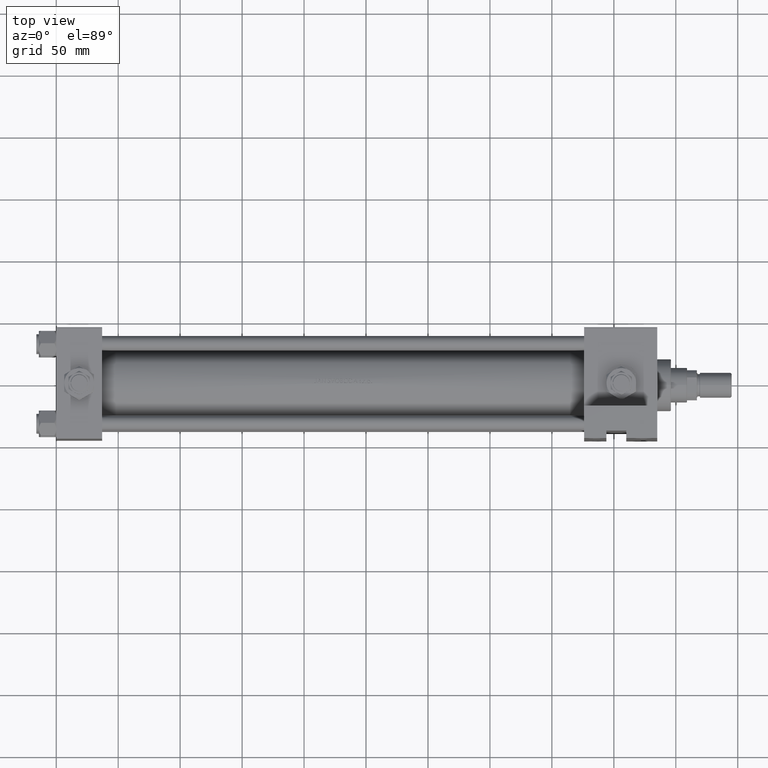
[diagram: clean part render]
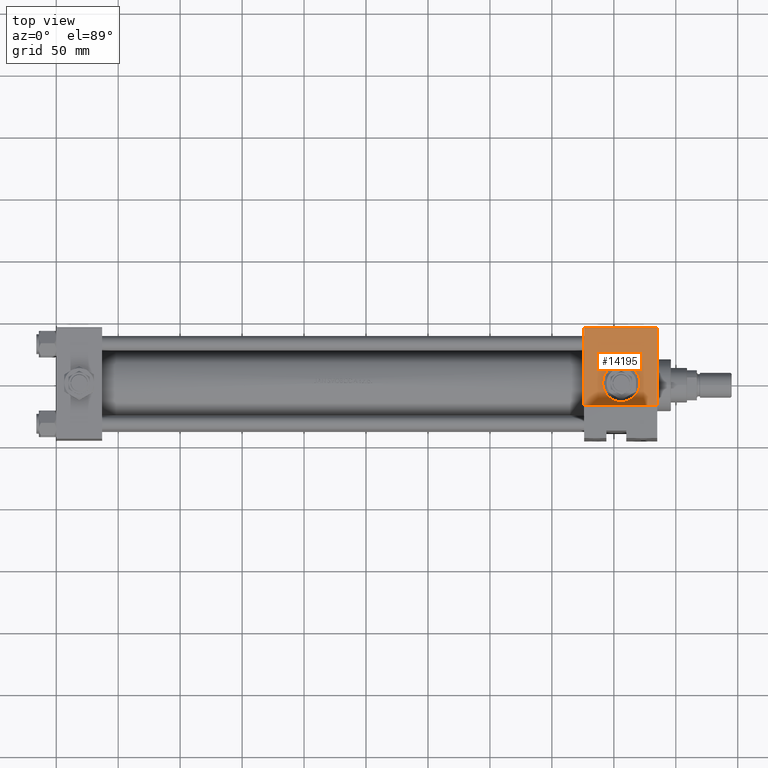
[diagram: same view with one face highlighted and labeled with its STEP entity id]
A machine part, top view. The second image highlights one B-rep face of the part: STEP entity #14195.
In plain terms, the highlighted planar face has unit normal (0, 0, -1).
Its self-contained STEP definition (entity closure, byte-faithful):
#927 = CARTESIAN_POINT ( 'NONE',  ( 426.0000000000000000, -45.00000000000000000, 44.49999999999998579 ) ) ;
#2760 = ORIENTED_EDGE ( 'NONE', *, *, #16599, .F. ) ;
#3697 = EDGE_CURVE ( 'NONE', #42475, #3782, #19711, .T. ) ;
#3782 = VERTEX_POINT ( 'NONE', #927 ) ;
#4274 = AXIS2_PLACEMENT_3D ( 'NONE', #36166, #35671, #24754 ) ;
#6337 = VECTOR ( 'NONE', #31914, 1000.000000000000000 ) ;
#7078 = ORIENTED_EDGE ( 'NONE', *, *, #49389, .F. ) ;
#7252 = AXIS2_PLACEMENT_3D ( 'NONE', #31669, #24037, #12844 ) ;
#9937 = VECTOR ( 'NONE', #43203, 1000.000000000000000 ) ;
#10785 = ORIENTED_EDGE ( 'NONE', *, *, #11712, .T. ) ;
#11712 = EDGE_CURVE ( 'NONE', #3782, #35763, #23435, .T. ) ;
#12844 = DIRECTION ( 'NONE',  ( 0.000000000000000000, 0.000000000000000000, -1.000000000000000000 ) ) ;
#12853 = CARTESIAN_POINT ( 'NONE',  ( 455.9999999999999432, -45.00000000000000000, 15.00000000000002132 ) ) ;
#13754 = VERTEX_POINT ( 'NONE', #38336 ) ;
#14195 = ADVANCED_FACE ( 'NONE', ( #30127, #45824 ), #31138, .F. ) ;
#14910 = DIRECTION ( 'NONE',  ( -1.000000000000000000, 0.000000000000000000, 0.000000000000000000 ) ) ;
#15894 = ORIENTED_EDGE ( 'NONE', *, *, #37339, .T. ) ;
#16599 = EDGE_CURVE ( 'NONE', #13754, #28086, #22942, .T. ) ;
#19711 = LINE ( 'NONE', #34950, #20283 ) ;
#19947 = ORIENTED_EDGE ( 'NONE', *, *, #36819, .F. ) ;
#20283 = VECTOR ( 'NONE', #14910, 1000.000000000000000 ) ;
#20349 = EDGE_LOOP ( 'NONE', ( #2760, #7078 ) ) ;
#20752 = ORIENTED_EDGE ( 'NONE', *, *, #3697, .T. ) ;
#22942 = CIRCLE ( 'NONE', #4274, 15.00000000000002487 ) ;
#23435 = LINE ( 'NONE', #35101, #9937 ) ;
#24037 = DIRECTION ( 'NONE',  ( 0.000000000000000000, -1.000000000000000000, -8.673617379884036705E-17 ) ) ;
#24754 = DIRECTION ( 'NONE',  ( 0.000000000000000000, 0.000000000000000000, -1.000000000000000000 ) ) ;
#27057 = DIRECTION ( 'NONE',  ( 0.000000000000000000, 7.709882115452478166E-17, -1.000000000000000000 ) ) ;
#27619 = LINE ( 'NONE', #31426, #6337 ) ;
#27826 = CARTESIAN_POINT ( 'NONE',  ( 426.0000000000000000, -45.00000000000000000, -19.00000000000000000 ) ) ;
#28086 = VERTEX_POINT ( 'NONE', #12853 ) ;
#29890 = CARTESIAN_POINT ( 'NONE',  ( 485.0000000000000000, -44.99999999999999289, -18.99999999999997513 ) ) ;
#30127 = FACE_BOUND ( 'NONE', #20349, .T. ) ;
#31138 = PLANE ( 'NONE',  #38399 ) ;
#31426 = CARTESIAN_POINT ( 'NONE',  ( 426.0000000000000000, -45.00000000000000000, -19.00000000000000000 ) ) ;
#31570 = CIRCLE ( 'NONE', #7252, 15.00000000000002487 ) ;
#31669 = CARTESIAN_POINT ( 'NONE',  ( 455.9999999999999432, -45.00000000000000000, -3.469446951953614978E-15 ) ) ;
#31769 = VERTEX_POINT ( 'NONE', #29890 ) ;
#31914 = DIRECTION ( 'NONE',  ( 1.000000000000000000, 0.000000000000000000, 0.000000000000000000 ) ) ;
#34950 = CARTESIAN_POINT ( 'NONE',  ( 485.0000000000000000, -45.00000000000000000, 44.49999999999998579 ) ) ;
#35101 = CARTESIAN_POINT ( 'NONE',  ( 426.0000000000000000, -45.00000000000000000, 44.99999999999998579 ) ) ;
#35148 = LINE ( 'NONE', #35383, #48470 ) ;
#35383 = CARTESIAN_POINT ( 'NONE',  ( 485.0000000000000000, -45.00000000000000000, 44.99999999999998579 ) ) ;
#35671 = DIRECTION ( 'NONE',  ( 0.000000000000000000, -1.000000000000000000, -8.673617379884036705E-17 ) ) ;
#35683 = EDGE_LOOP ( 'NONE', ( #19947, #20752, #10785, #15894 ) ) ;
#35763 = VERTEX_POINT ( 'NONE', #27826 ) ;
#36166 = CARTESIAN_POINT ( 'NONE',  ( 455.9999999999999432, -45.00000000000000000, -3.469446951953614978E-15 ) ) ;
#36346 = CARTESIAN_POINT ( 'NONE',  ( 485.0000000000000000, -45.00000000000000000, 44.49999999999998579 ) ) ;
#36819 = EDGE_CURVE ( 'NONE', #42475, #31769, #35148, .T. ) ;
#37339 = EDGE_CURVE ( 'NONE', #35763, #31769, #27619, .T. ) ;
#37958 = CARTESIAN_POINT ( 'NONE',  ( 485.0000000000000000, -45.00000000000000000, 44.99999999999998579 ) ) ;
#38336 = CARTESIAN_POINT ( 'NONE',  ( 455.9999999999999432, -45.00000000000000000, -15.00000000000002842 ) ) ;
#38399 = AXIS2_PLACEMENT_3D ( 'NONE', #37958, #50145, #42273 ) ;
#42273 = DIRECTION ( 'NONE',  ( 0.000000000000000000, -7.709882115452478166E-17, 1.000000000000000000 ) ) ;
#42475 = VERTEX_POINT ( 'NONE', #36346 ) ;
#43203 = DIRECTION ( 'NONE',  ( 0.000000000000000000, 7.709882115452478166E-17, -1.000000000000000000 ) ) ;
#45824 = FACE_OUTER_BOUND ( 'NONE', #35683, .T. ) ;
#48470 = VECTOR ( 'NONE', #27057, 1000.000000000000000 ) ;
#49389 = EDGE_CURVE ( 'NONE', #28086, #13754, #31570, .T. ) ;
#50145 = DIRECTION ( 'NONE',  ( -0.000000000000000000, 1.000000000000000000, 7.709882115452478166E-17 ) ) ;